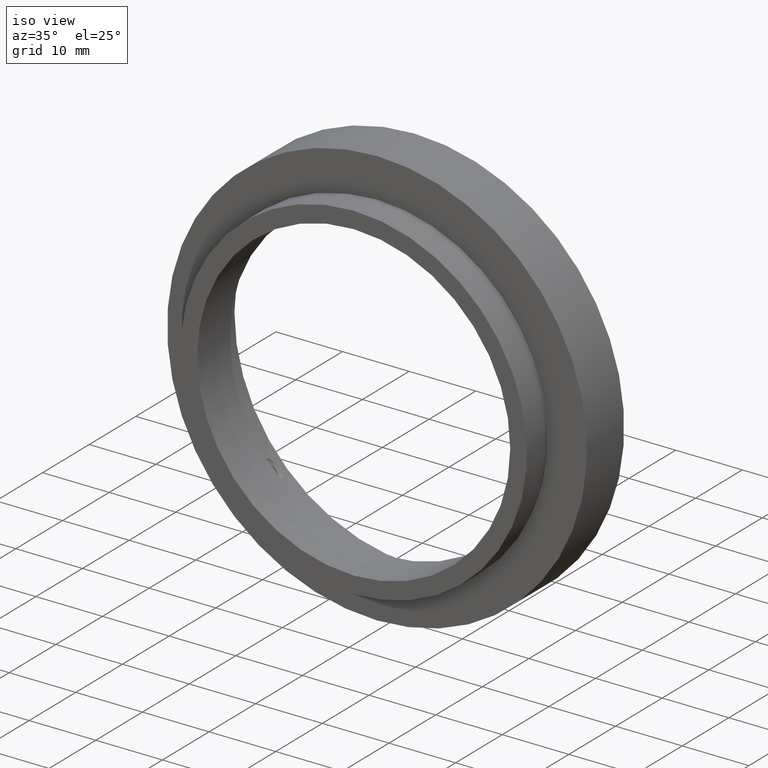
[diagram: clean part render]
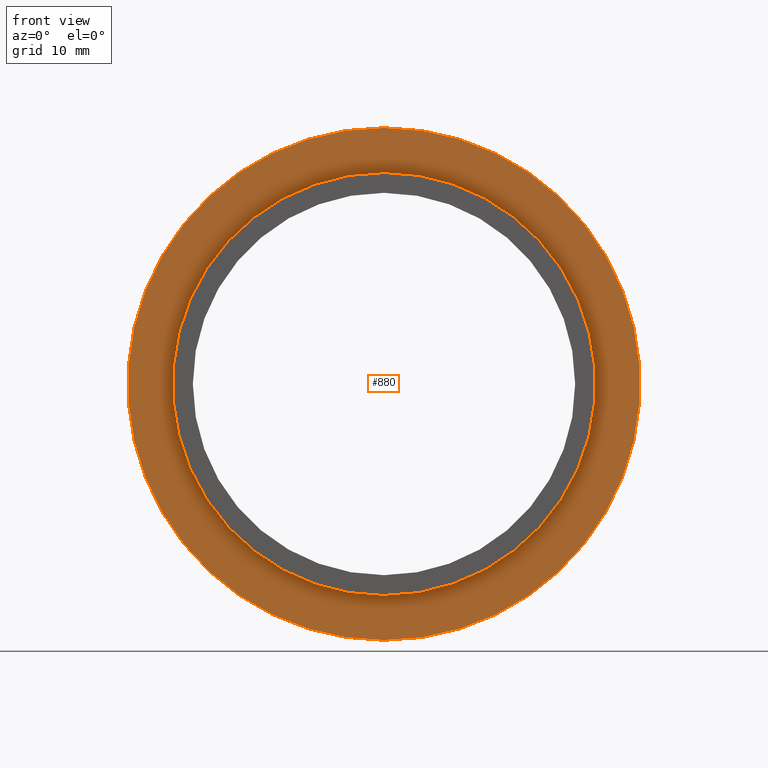
[diagram: tour spotlight — one face highlighted and labeled with its STEP entity id]
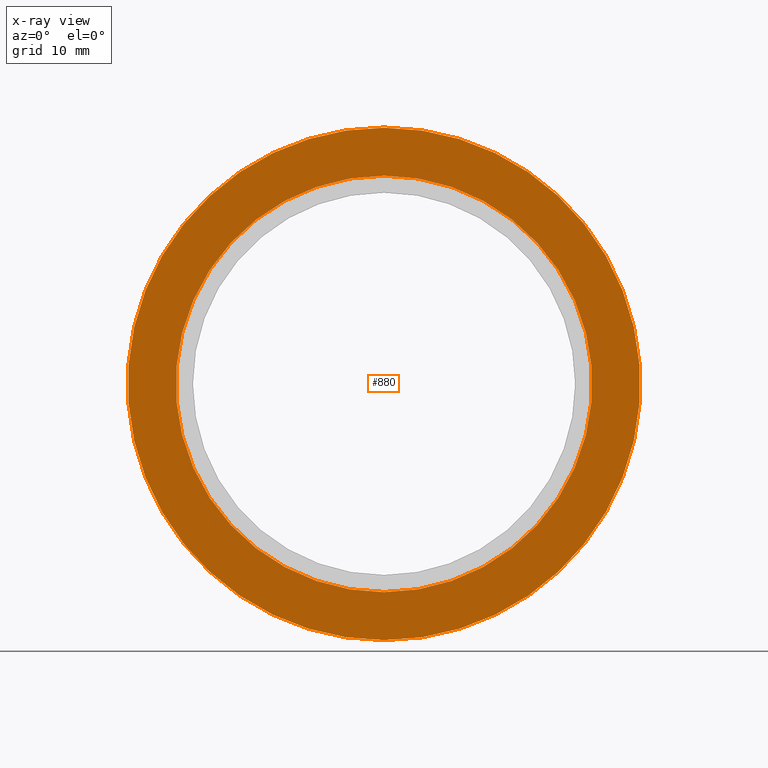
[diagram: x-ray of the same camera — body ghosted, this tour face saturated]
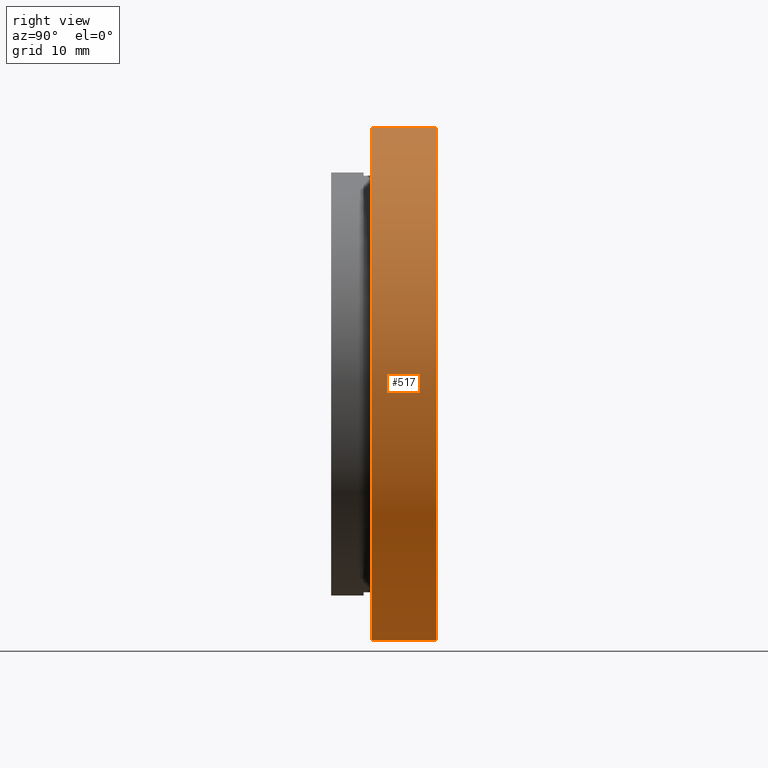
[diagram: tour spotlight — one face highlighted and labeled with its STEP entity id]
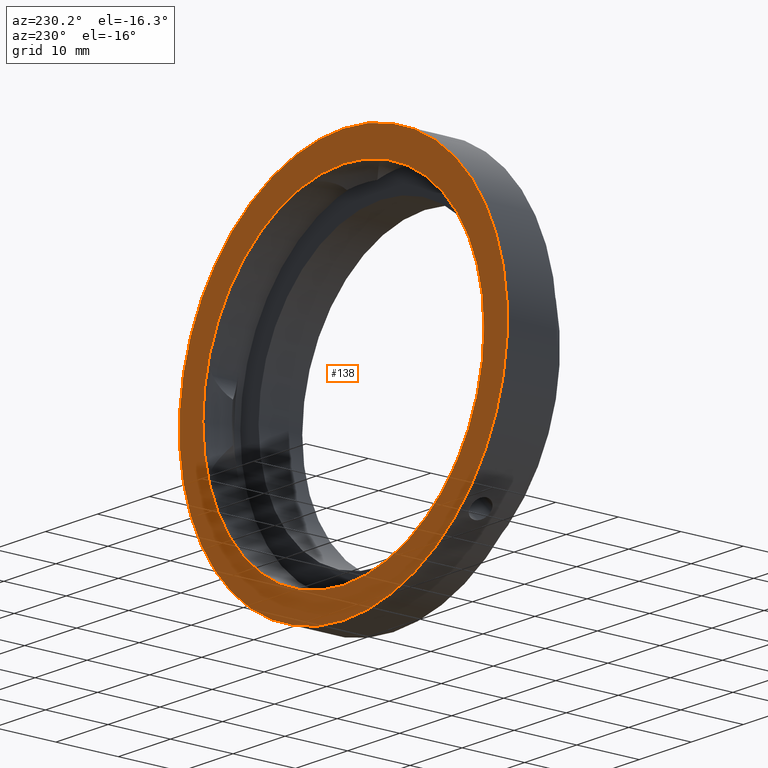
[diagram: tour spotlight — one face highlighted and labeled with its STEP entity id]
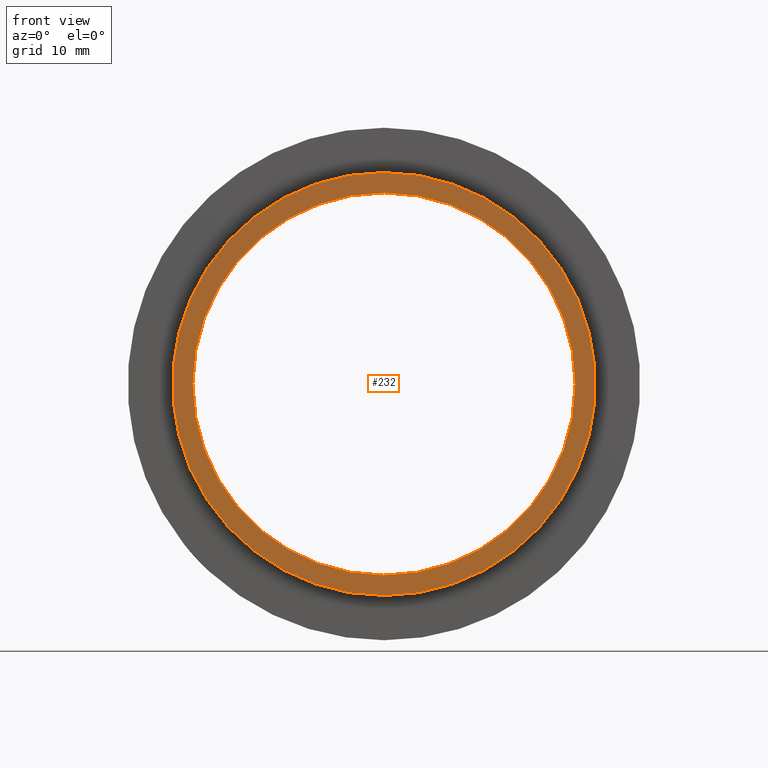
[diagram: tour spotlight — one face highlighted and labeled with its STEP entity id]
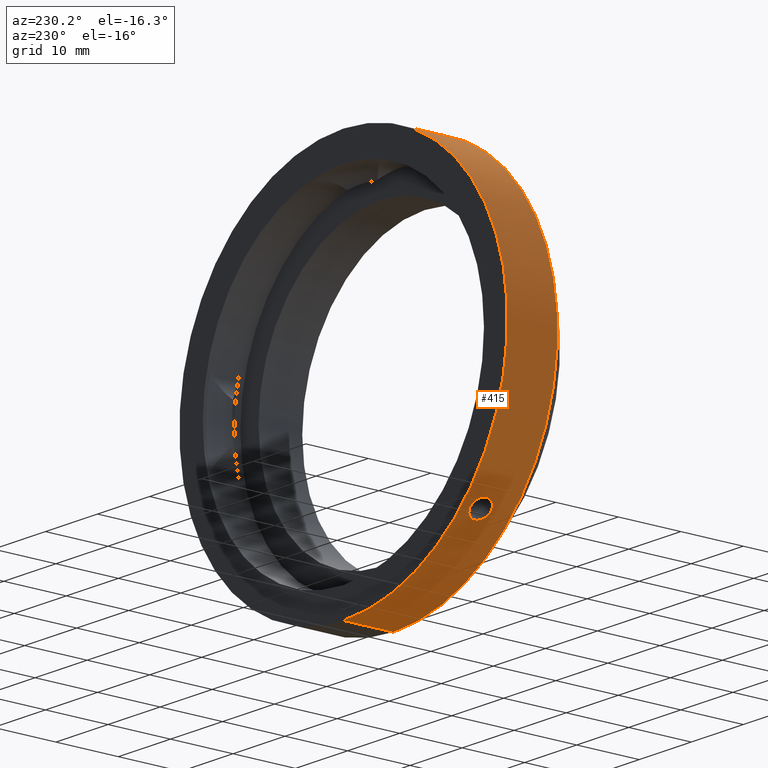
[diagram: tour spotlight — one face highlighted and labeled with its STEP entity id]
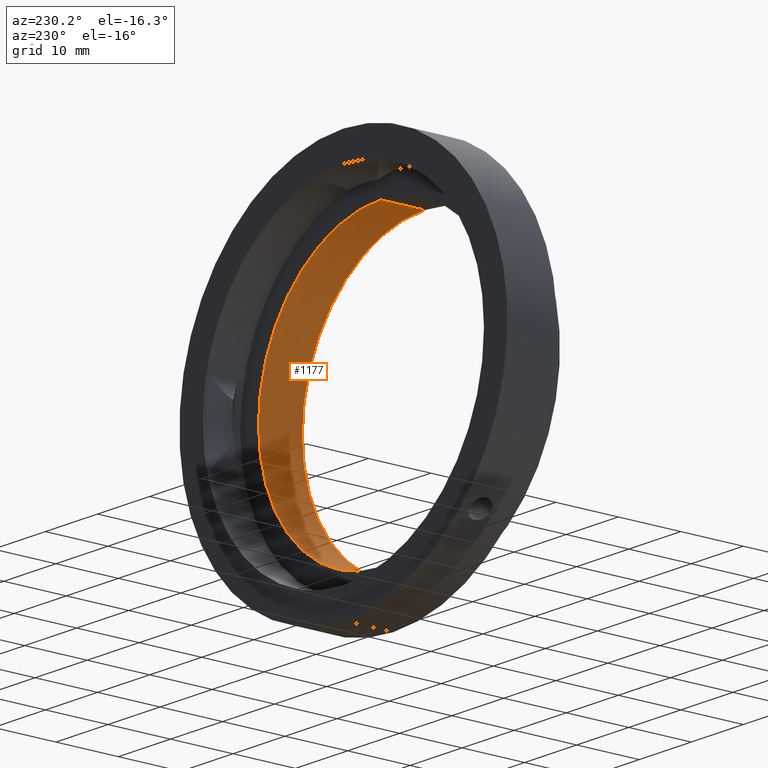
[diagram: tour spotlight — one face highlighted and labeled with its STEP entity id]
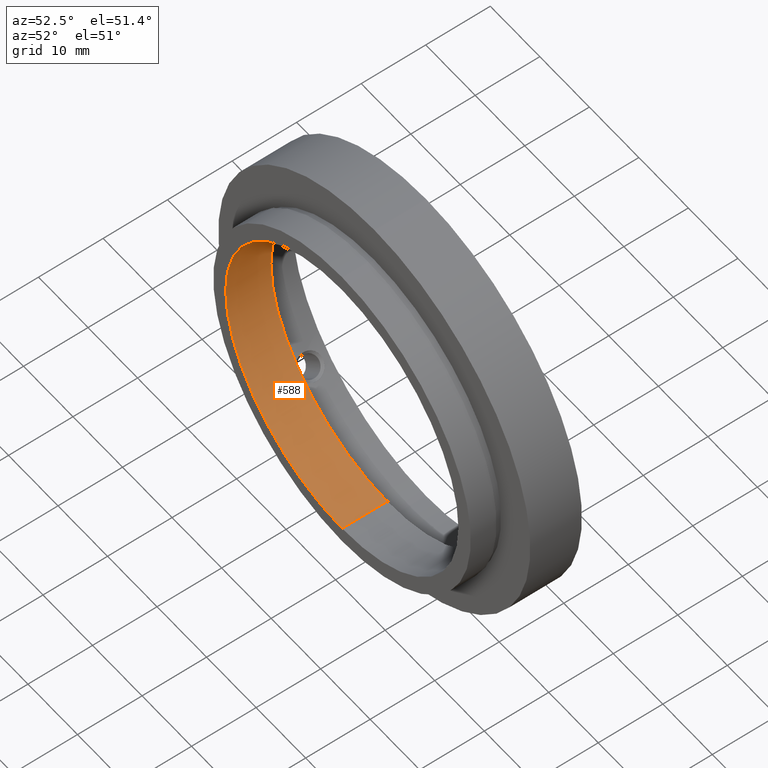
[diagram: tour spotlight — one face highlighted and labeled with its STEP entity id]
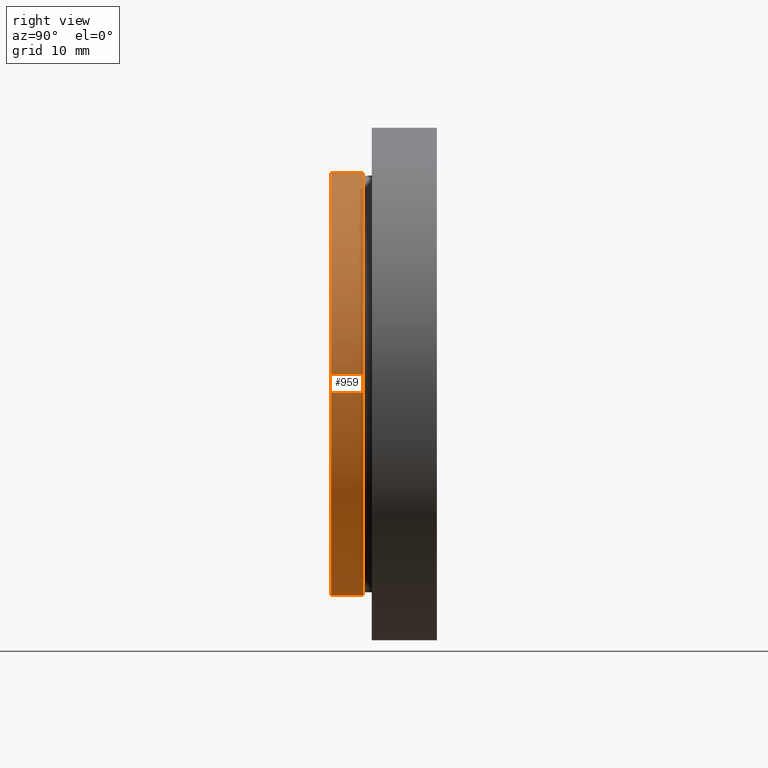
[diagram: tour spotlight — one face highlighted and labeled with its STEP entity id]
A machine part: a face-by-face anatomy tour. The part has 30 B-rep faces; the first image is the clean iso view, then the 8 largest visible faces are spotlighted one at a time (largest first), each with its STEP entity span.

Face 1 — front view, entity #880. An x-ray twin of the same camera follows (body ghosted, this face saturated) — the face is partly hidden behind the body. In plain terms, the highlighted planar face has unit normal (0, 1, 0).
Definition (entity closure, byte-faithful):
#23 = CARTESIAN_POINT ( 'NONE',  ( 3.135095805817224400E-015, -4.003278688524598100, 25.60000000000000100 ) ) ;
#48 = AXIS2_PLACEMENT_3D ( 'NONE', #117, #306, #403 ) ;
#62 = CARTESIAN_POINT ( 'NONE',  ( 0.0000000000000000000, -4.003278688524598100, -25.60000000000000100 ) ) ;
#95 = AXIS2_PLACEMENT_3D ( 'NONE', #809, #1090, #153 ) ;
#117 = CARTESIAN_POINT ( 'NONE',  ( 0.0000000000000000000, -4.003278688524598100, 0.0000000000000000000 ) ) ;
#153 = DIRECTION ( 'NONE',  ( 0.0000000000000000000, 0.0000000000000000000, -1.000000000000000000 ) ) ;
#210 = EDGE_LOOP ( 'NONE', ( #840, #387 ) ) ;
#216 = AXIS2_PLACEMENT_3D ( 'NONE', #655, #544, #1011 ) ;
#295 = EDGE_CURVE ( 'NONE', #913, #524, #1015, .T. ) ;
#306 = DIRECTION ( 'NONE',  ( -0.0000000000000000000, -1.000000000000000000, -0.0000000000000000000 ) ) ;
#312 = EDGE_LOOP ( 'NONE', ( #826, #496 ) ) ;
#352 = FACE_OUTER_BOUND ( 'NONE', #210, .T. ) ;
#387 = ORIENTED_EDGE ( 'NONE', *, *, #858, .T. ) ;
#398 = DIRECTION ( 'NONE',  ( -0.0000000000000000000, -1.000000000000000000, -0.0000000000000000000 ) ) ;
#403 = DIRECTION ( 'NONE',  ( 0.0000000000000000000, 0.0000000000000000000, -1.000000000000000000 ) ) ;
#407 = DIRECTION ( 'NONE',  ( 0.0000000000000000000, 0.0000000000000000000, -1.000000000000000000 ) ) ;
#483 = AXIS2_PLACEMENT_3D ( 'NONE', #869, #398, #407 ) ;
#496 = ORIENTED_EDGE ( 'NONE', *, *, #712, .F. ) ;
#524 = VERTEX_POINT ( 'NONE', #1127 ) ;
#544 = DIRECTION ( 'NONE',  ( 0.0000000000000000000, 1.000000000000000000, 0.0000000000000000000 ) ) ;
#570 = PLANE ( 'NONE',  #216 ) ;
#604 = FACE_BOUND ( 'NONE', #312, .T. ) ;
#655 = CARTESIAN_POINT ( 'NONE',  ( -31.50000000000000000, -4.003278688524598100, 0.0000000000000000000 ) ) ;
#712 = EDGE_CURVE ( 'NONE', #1053, #870, #801, .T. ) ;
#801 = CIRCLE ( 'NONE', #483, 25.60000000000000100 ) ;
#809 = CARTESIAN_POINT ( 'NONE',  ( 0.0000000000000000000, -4.003278688524598100, 0.0000000000000000000 ) ) ;
#823 = EDGE_CURVE ( 'NONE', #870, #1053, #996, .T. ) ;
#826 = ORIENTED_EDGE ( 'NONE', *, *, #823, .F. ) ;
#840 = ORIENTED_EDGE ( 'NONE', *, *, #295, .T. ) ;
#858 = EDGE_CURVE ( 'NONE', #524, #913, #1144, .T. ) ;
#869 = CARTESIAN_POINT ( 'NONE',  ( 0.0000000000000000000, -4.003278688524598100, 0.0000000000000000000 ) ) ;
#870 = VERTEX_POINT ( 'NONE', #62 ) ;
#880 = ADVANCED_FACE ( 'NONE', ( #604, #352 ), #570, .F. ) ;
#913 = VERTEX_POINT ( 'NONE', #930 ) ;
#930 = CARTESIAN_POINT ( 'NONE',  ( 0.0000000000000000000, -4.003278688524598100, -31.50000000000000000 ) ) ;
#973 = DIRECTION ( 'NONE',  ( -0.0000000000000000000, -1.000000000000000000, -0.0000000000000000000 ) ) ;
#979 = DIRECTION ( 'NONE',  ( 0.0000000000000000000, 0.0000000000000000000, -1.000000000000000000 ) ) ;
#996 = CIRCLE ( 'NONE', #95, 25.60000000000000100 ) ;
#1011 = DIRECTION ( 'NONE',  ( 0.0000000000000000000, -0.0000000000000000000, 1.000000000000000000 ) ) ;
#1015 = CIRCLE ( 'NONE', #48, 31.50000000000000000 ) ;
#1053 = VERTEX_POINT ( 'NONE', #23 ) ;
#1090 = DIRECTION ( 'NONE',  ( -0.0000000000000000000, -1.000000000000000000, -0.0000000000000000000 ) ) ;
#1105 = AXIS2_PLACEMENT_3D ( 'NONE', #1179, #973, #979 ) ;
#1127 = CARTESIAN_POINT ( 'NONE',  ( 3.857637417314162700E-015, -4.003278688524598100, 31.50000000000000000 ) ) ;
#1144 = CIRCLE ( 'NONE', #1105, 31.50000000000000000 ) ;
#1179 = CARTESIAN_POINT ( 'NONE',  ( 0.0000000000000000000, -4.003278688524598100, 0.0000000000000000000 ) ) ;

Face 2 — right view, entity #517. In plain terms, the highlighted cylindrical surface (partial cylindrical patch) has radius 31.5 mm, axis along (-0, -1, -0).
Definition (entity closure, byte-faithful):
#8 = CARTESIAN_POINT ( 'NONE',  ( 0.0000000000000000000, 0.0000000000000000000, 0.0000000000000000000 ) ) ;
#48 = AXIS2_PLACEMENT_3D ( 'NONE', #117, #306, #403 ) ;
#110 = CYLINDRICAL_SURFACE ( 'NONE', #1119, 31.50000000000000000 ) ;
#117 = CARTESIAN_POINT ( 'NONE',  ( 0.0000000000000000000, -4.003278688524598100, 0.0000000000000000000 ) ) ;
#139 = DIRECTION ( 'NONE',  ( -0.0000000000000000000, -1.000000000000000000, -0.0000000000000000000 ) ) ;
#269 = DIRECTION ( 'NONE',  ( 0.0000000000000000000, 0.0000000000000000000, -1.000000000000000000 ) ) ;
#272 = ORIENTED_EDGE ( 'NONE', *, *, #661, .T. ) ;
#295 = EDGE_CURVE ( 'NONE', #913, #524, #1015, .T. ) ;
#306 = DIRECTION ( 'NONE',  ( -0.0000000000000000000, -1.000000000000000000, -0.0000000000000000000 ) ) ;
#335 = EDGE_CURVE ( 'NONE', #529, #644, #907, .T. ) ;
#365 = DIRECTION ( 'NONE',  ( -0.0000000000000000000, -1.000000000000000000, -0.0000000000000000000 ) ) ;
#403 = DIRECTION ( 'NONE',  ( 0.0000000000000000000, 0.0000000000000000000, -1.000000000000000000 ) ) ;
#517 = ADVANCED_FACE ( 'NONE', ( #552 ), #110, .T. ) ;
#524 = VERTEX_POINT ( 'NONE', #1127 ) ;
#526 = ORIENTED_EDGE ( 'NONE', *, *, #864, .F. ) ;
#529 = VERTEX_POINT ( 'NONE', #656 ) ;
#552 = FACE_OUTER_BOUND ( 'NONE', #560, .T. ) ;
#560 = EDGE_LOOP ( 'NONE', ( #684, #272, #1137, #526 ) ) ;
#575 = DIRECTION ( 'NONE',  ( -0.0000000000000000000, -1.000000000000000000, -0.0000000000000000000 ) ) ;
#621 = DIRECTION ( 'NONE',  ( 0.0000000000000000000, 0.0000000000000000000, -1.000000000000000000 ) ) ;
#626 = CARTESIAN_POINT ( 'NONE',  ( 0.0000000000000000000, 0.0000000000000000000, -31.50000000000000000 ) ) ;
#644 = VERTEX_POINT ( 'NONE', #679 ) ;
#656 = CARTESIAN_POINT ( 'NONE',  ( 0.0000000000000000000, 3.996721311475401000, -31.50000000000000000 ) ) ;
#661 = EDGE_CURVE ( 'NONE', #644, #524, #1088, .T. ) ;
#679 = CARTESIAN_POINT ( 'NONE',  ( 3.857637417314162700E-015, 3.996721311475401000, 31.50000000000000000 ) ) ;
#684 = ORIENTED_EDGE ( 'NONE', *, *, #335, .T. ) ;
#846 = VECTOR ( 'NONE', #1079, 1000.000000000000000 ) ;
#864 = EDGE_CURVE ( 'NONE', #529, #913, #1103, .T. ) ;
#907 = CIRCLE ( 'NONE', #1004, 31.50000000000000000 ) ;
#913 = VERTEX_POINT ( 'NONE', #930 ) ;
#930 = CARTESIAN_POINT ( 'NONE',  ( 0.0000000000000000000, -4.003278688524598100, -31.50000000000000000 ) ) ;
#984 = CARTESIAN_POINT ( 'NONE',  ( 0.0000000000000000000, 3.996721311475401000, 0.0000000000000000000 ) ) ;
#1004 = AXIS2_PLACEMENT_3D ( 'NONE', #984, #139, #621 ) ;
#1015 = CIRCLE ( 'NONE', #48, 31.50000000000000000 ) ;
#1042 = CARTESIAN_POINT ( 'NONE',  ( 3.857637417314162700E-015, 0.0000000000000000000, 31.50000000000000000 ) ) ;
#1072 = VECTOR ( 'NONE', #575, 1000.000000000000000 ) ;
#1079 = DIRECTION ( 'NONE',  ( -0.0000000000000000000, -1.000000000000000000, -0.0000000000000000000 ) ) ;
#1088 = LINE ( 'NONE', #1042, #1072 ) ;
#1103 = LINE ( 'NONE', #626, #846 ) ;
#1119 = AXIS2_PLACEMENT_3D ( 'NONE', #8, #365, #269 ) ;
#1127 = CARTESIAN_POINT ( 'NONE',  ( 3.857637417314162700E-015, -4.003278688524598100, 31.50000000000000000 ) ) ;
#1137 = ORIENTED_EDGE ( 'NONE', *, *, #295, .F. ) ;

Face 3 — auxiliary view, entity #138. In plain terms, the highlighted planar face has unit normal (0, -1, -0).
Definition (entity closure, byte-faithful):
#87 = FACE_BOUND ( 'NONE', #558, .T. ) ;
#127 = AXIS2_PLACEMENT_3D ( 'NONE', #741, #646, #567 ) ;
#134 = CIRCLE ( 'NONE', #127, 31.50000000000000000 ) ;
#138 = ADVANCED_FACE ( 'NONE', ( #217, #87 ), #220, .F. ) ;
#139 = DIRECTION ( 'NONE',  ( -0.0000000000000000000, -1.000000000000000000, -0.0000000000000000000 ) ) ;
#172 = EDGE_CURVE ( 'NONE', #601, #460, #820, .T. ) ;
#217 = FACE_OUTER_BOUND ( 'NONE', #421, .T. ) ;
#220 = PLANE ( 'NONE',  #654 ) ;
#241 = DIRECTION ( 'NONE',  ( 0.0000000000000000000, 0.0000000000000000000, -1.000000000000000000 ) ) ;
#276 = CIRCLE ( 'NONE', #928, 27.00000000000000000 ) ;
#313 = DIRECTION ( 'NONE',  ( 0.0000000000000000000, 0.0000000000000000000, -1.000000000000000000 ) ) ;
#335 = EDGE_CURVE ( 'NONE', #529, #644, #907, .T. ) ;
#338 = DIRECTION ( 'NONE',  ( -0.0000000000000000000, -1.000000000000000000, -0.0000000000000000000 ) ) ;
#377 = ORIENTED_EDGE ( 'NONE', *, *, #1161, .T. ) ;
#414 = DIRECTION ( 'NONE',  ( 0.0000000000000000000, -1.000000000000000000, -0.0000000000000000000 ) ) ;
#421 = EDGE_LOOP ( 'NONE', ( #939, #814 ) ) ;
#460 = VERTEX_POINT ( 'NONE', #1205 ) ;
#529 = VERTEX_POINT ( 'NONE', #656 ) ;
#556 = EDGE_CURVE ( 'NONE', #644, #529, #134, .T. ) ;
#558 = EDGE_LOOP ( 'NONE', ( #615, #377 ) ) ;
#567 = DIRECTION ( 'NONE',  ( 0.0000000000000000000, 0.0000000000000000000, -1.000000000000000000 ) ) ;
#600 = CARTESIAN_POINT ( 'NONE',  ( -27.00000000000000000, 3.996721311475401000, 0.0000000000000000000 ) ) ;
#601 = VERTEX_POINT ( 'NONE', #768 ) ;
#615 = ORIENTED_EDGE ( 'NONE', *, *, #172, .T. ) ;
#621 = DIRECTION ( 'NONE',  ( 0.0000000000000000000, 0.0000000000000000000, -1.000000000000000000 ) ) ;
#644 = VERTEX_POINT ( 'NONE', #679 ) ;
#646 = DIRECTION ( 'NONE',  ( -0.0000000000000000000, -1.000000000000000000, -0.0000000000000000000 ) ) ;
#654 = AXIS2_PLACEMENT_3D ( 'NONE', #600, #414, #876 ) ;
#656 = CARTESIAN_POINT ( 'NONE',  ( 0.0000000000000000000, 3.996721311475401000, -31.50000000000000000 ) ) ;
#679 = CARTESIAN_POINT ( 'NONE',  ( 3.857637417314162700E-015, 3.996721311475401000, 31.50000000000000000 ) ) ;
#741 = CARTESIAN_POINT ( 'NONE',  ( 0.0000000000000000000, 3.996721311475401000, 0.0000000000000000000 ) ) ;
#765 = DIRECTION ( 'NONE',  ( -0.0000000000000000000, -1.000000000000000000, -0.0000000000000000000 ) ) ;
#768 = CARTESIAN_POINT ( 'NONE',  ( 0.0000000000000000000, 3.996721311475401000, -27.00000000000000000 ) ) ;
#770 = CARTESIAN_POINT ( 'NONE',  ( 0.0000000000000000000, 3.996721311475401000, 0.0000000000000000000 ) ) ;
#814 = ORIENTED_EDGE ( 'NONE', *, *, #556, .F. ) ;
#820 = CIRCLE ( 'NONE', #1131, 27.00000000000000000 ) ;
#876 = DIRECTION ( 'NONE',  ( 0.0000000000000000000, 0.0000000000000000000, -1.000000000000000000 ) ) ;
#907 = CIRCLE ( 'NONE', #1004, 31.50000000000000000 ) ;
#911 = CARTESIAN_POINT ( 'NONE',  ( 0.0000000000000000000, 3.996721311475401000, 0.0000000000000000000 ) ) ;
#928 = AXIS2_PLACEMENT_3D ( 'NONE', #911, #338, #241 ) ;
#939 = ORIENTED_EDGE ( 'NONE', *, *, #335, .F. ) ;
#984 = CARTESIAN_POINT ( 'NONE',  ( 0.0000000000000000000, 3.996721311475401000, 0.0000000000000000000 ) ) ;
#1004 = AXIS2_PLACEMENT_3D ( 'NONE', #984, #139, #621 ) ;
#1131 = AXIS2_PLACEMENT_3D ( 'NONE', #770, #765, #313 ) ;
#1161 = EDGE_CURVE ( 'NONE', #460, #601, #276, .T. ) ;
#1205 = CARTESIAN_POINT ( 'NONE',  ( 3.306546357697853700E-015, 3.996721311475401000, 27.00000000000000000 ) ) ;

Face 4 — front view, entity #232. In plain terms, the highlighted planar face has unit normal (0, 1, 0).
Definition (entity closure, byte-faithful):
#18 = ORIENTED_EDGE ( 'NONE', *, *, #453, .T. ) ;
#65 = CARTESIAN_POINT ( 'NONE',  ( 0.0000000000000000000, -9.003278688524599000, 0.0000000000000000000 ) ) ;
#164 = FACE_BOUND ( 'NONE', #1039, .T. ) ;
#227 = DIRECTION ( 'NONE',  ( -0.0000000000000000000, -1.000000000000000000, -0.0000000000000000000 ) ) ;
#232 = ADVANCED_FACE ( 'NONE', ( #164, #1106 ), #592, .F. ) ;
#247 = DIRECTION ( 'NONE',  ( 0.0000000000000000000, 0.0000000000000000000, -1.000000000000000000 ) ) ;
#264 = CIRCLE ( 'NONE', #1154, 26.00000000000000000 ) ;
#358 = CARTESIAN_POINT ( 'NONE',  ( 0.0000000000000000000, -9.003278688524595500, 0.0000000000000000000 ) ) ;
#375 = EDGE_CURVE ( 'NONE', #767, #509, #760, .T. ) ;
#399 = EDGE_CURVE ( 'NONE', #1124, #582, #264, .T. ) ;
#438 = DIRECTION ( 'NONE',  ( 0.0000000000000000000, 0.0000000000000000000, -1.000000000000000000 ) ) ;
#453 = EDGE_CURVE ( 'NONE', #582, #1124, #1159, .T. ) ;
#509 = VERTEX_POINT ( 'NONE', #716 ) ;
#515 = DIRECTION ( 'NONE',  ( -0.0000000000000000000, -1.000000000000000000, -0.0000000000000000000 ) ) ;
#522 = CARTESIAN_POINT ( 'NONE',  ( 0.0000000000000000000, -9.003278688524595500, 0.0000000000000000000 ) ) ;
#581 = DIRECTION ( 'NONE',  ( 0.0000000000000000000, 1.000000000000000000, 0.0000000000000000000 ) ) ;
#582 = VERTEX_POINT ( 'NONE', #836 ) ;
#592 = PLANE ( 'NONE',  #956 ) ;
#700 = DIRECTION ( 'NONE',  ( -0.0000000000000000000, -1.000000000000000000, -0.0000000000000000000 ) ) ;
#703 = DIRECTION ( 'NONE',  ( 0.0000000000000000000, 0.0000000000000000000, -1.000000000000000000 ) ) ;
#705 = CARTESIAN_POINT ( 'NONE',  ( 0.0000000000000000000, -9.003278688524599000, 0.0000000000000000000 ) ) ;
#716 = CARTESIAN_POINT ( 'NONE',  ( 0.0000000000000000000, -9.003278688524599000, -23.49999999999999600 ) ) ;
#760 = CIRCLE ( 'NONE', #1198, 23.49999999999999600 ) ;
#762 = CARTESIAN_POINT ( 'NONE',  ( 0.0000000000000000000, -9.003278688524595500, -26.00000000000000000 ) ) ;
#767 = VERTEX_POINT ( 'NONE', #964 ) ;
#793 = EDGE_CURVE ( 'NONE', #509, #767, #945, .T. ) ;
#812 = AXIS2_PLACEMENT_3D ( 'NONE', #358, #899, #247 ) ;
#836 = CARTESIAN_POINT ( 'NONE',  ( 3.184081677783118200E-015, -9.003278688524595500, 26.00000000000000000 ) ) ;
#899 = DIRECTION ( 'NONE',  ( -0.0000000000000000000, -1.000000000000000000, -0.0000000000000000000 ) ) ;
#945 = CIRCLE ( 'NONE', #1171, 23.49999999999999600 ) ;
#956 = AXIS2_PLACEMENT_3D ( 'NONE', #1060, #581, #1150 ) ;
#964 = CARTESIAN_POINT ( 'NONE',  ( 2.877919977996279500E-015, -9.003278688524599000, 23.49999999999999600 ) ) ;
#970 = DIRECTION ( 'NONE',  ( 0.0000000000000000000, 0.0000000000000000000, -1.000000000000000000 ) ) ;
#1008 = ORIENTED_EDGE ( 'NONE', *, *, #399, .T. ) ;
#1021 = ORIENTED_EDGE ( 'NONE', *, *, #793, .F. ) ;
#1039 = EDGE_LOOP ( 'NONE', ( #1021, #1186 ) ) ;
#1060 = CARTESIAN_POINT ( 'NONE',  ( -26.00000000000000000, -9.003278688524597200, 0.0000000000000000000 ) ) ;
#1106 = FACE_OUTER_BOUND ( 'NONE', #1168, .T. ) ;
#1124 = VERTEX_POINT ( 'NONE', #762 ) ;
#1150 = DIRECTION ( 'NONE',  ( 0.0000000000000000000, -0.0000000000000000000, 1.000000000000000000 ) ) ;
#1154 = AXIS2_PLACEMENT_3D ( 'NONE', #522, #227, #703 ) ;
#1159 = CIRCLE ( 'NONE', #812, 26.00000000000000000 ) ;
#1168 = EDGE_LOOP ( 'NONE', ( #1008, #18 ) ) ;
#1171 = AXIS2_PLACEMENT_3D ( 'NONE', #705, #700, #438 ) ;
#1186 = ORIENTED_EDGE ( 'NONE', *, *, #375, .F. ) ;
#1198 = AXIS2_PLACEMENT_3D ( 'NONE', #65, #515, #970 ) ;

Face 5 — auxiliary view, entity #415. In plain terms, the highlighted cylindrical surface (partial cylindrical patch) has radius 31.5 mm, axis along (-0, -1, -0).
Definition (entity closure, byte-faithful):
#40 = FACE_OUTER_BOUND ( 'NONE', #223, .T. ) ;
#70 = CARTESIAN_POINT ( 'NONE',  ( -23.46020590372201300, -0.3149907501200605600, -21.02086558098303100 ) ) ;
#74 = CARTESIAN_POINT ( 'NONE',  ( -23.77550605843673600, 1.728083911235984500, -20.66342252342952800 ) ) ;
#76 = CARTESIAN_POINT ( 'NONE',  ( -21.75691578411938200, 0.1651842832820210300, -22.77923243659460400 ) ) ;
#78 = CARTESIAN_POINT ( 'NONE',  ( -21.76351426358370800, 1.823304763447246100, -22.77285751721110800 ) ) ;
#88 = CARTESIAN_POINT ( 'NONE',  ( -22.62717446904842300, 2.646644425745801100, -21.91591477700608300 ) ) ;
#103 = CARTESIAN_POINT ( 'NONE',  ( -21.60522735244103000, 0.9967213114754008800, -22.92300484337369700 ) ) ;
#116 = ORIENTED_EDGE ( 'NONE', *, *, #556, .T. ) ;
#127 = AXIS2_PLACEMENT_3D ( 'NONE', #741, #646, #567 ) ;
#134 = CIRCLE ( 'NONE', #127, 31.50000000000000000 ) ;
#149 = CARTESIAN_POINT ( 'NONE',  ( -23.14142829165112000, -0.5685077172544312800, -21.37134187885088800 ) ) ;
#159 = CARTESIAN_POINT ( 'NONE',  ( -23.34002152385437200, 2.428374851634509400, -21.15422874352426400 ) ) ;
#180 = CARTESIAN_POINT ( 'NONE',  ( -21.63722271029589500, 0.5620953827227164200, -22.89295542787611400 ) ) ;
#185 = AXIS2_PLACEMENT_3D ( 'NONE', #810, #1003, #821 ) ;
#223 = EDGE_LOOP ( 'NONE', ( #583, #116, #673, #571 ) ) ;
#235 = CARTESIAN_POINT ( 'NONE',  ( -23.88482892552873700, 0.9967213114754011100, -20.53691669161234800 ) ) ;
#240 = ORIENTED_EDGE ( 'NONE', *, *, #879, .T. ) ;
#251 = CARTESIAN_POINT ( 'NONE',  ( -23.66279821606099200, 2.003230850192477200, -20.79243990306020600 ) ) ;
#254 = CARTESIAN_POINT ( 'NONE',  ( -22.92536190013123600, 2.636026237330753000, -21.60298546842877300 ) ) ;
#265 = CARTESIAN_POINT ( 'NONE',  ( -23.51530437804490600, 2.240709153625879400, -20.95916036140708300 ) ) ;
#328 = CARTESIAN_POINT ( 'NONE',  ( -23.34007217087408000, -0.4349170511237368000, -21.15417410056892000 ) ) ;
#347 = CARTESIAN_POINT ( 'NONE',  ( -23.88482892552873300, 1.104418319846310200, -20.53691669161234400 ) ) ;
#357 = CARTESIAN_POINT ( 'NONE',  ( -21.60522735244103000, 0.7786922303288742500, -22.92300484337370000 ) ) ;
#360 = CARTESIAN_POINT ( 'NONE',  ( -21.61303009206918400, 1.212974077049962400, -22.91565776818825700 ) ) ;
#376 = EDGE_LOOP ( 'NONE', ( #898, #240 ) ) ;
#415 = ADVANCED_FACE ( 'NONE', ( #40, #605 ), #933, .T. ) ;
#420 = CARTESIAN_POINT ( 'NONE',  ( -23.88482892552874400, 0.7813764284198828600, -20.53691669161234800 ) ) ;
#431 = CARTESIAN_POINT ( 'NONE',  ( -23.27636205189914500, -0.4856344308044109900, -21.22430038209190800 ) ) ;
#434 = CARTESIAN_POINT ( 'NONE',  ( -22.62686429390143100, -0.6534572607649544700, -21.91625881211116000 ) ) ;
#441 = CARTESIAN_POINT ( 'NONE',  ( -21.90023671032698300, 2.087567809283316300, -22.64145388984293900 ) ) ;
#448 = CARTESIAN_POINT ( 'NONE',  ( -23.88482892552873700, 0.9967213114754011100, -20.53691669161234800 ) ) ;
#451 = CARTESIAN_POINT ( 'NONE',  ( -21.60522735244103000, 0.9967213114754008800, -22.92300484337369700 ) ) ;
#457 = CARTESIAN_POINT ( 'NONE',  ( -22.47544993886716800, 2.603322021969421300, -22.07132970426515000 ) ) ;
#478 = EDGE_CURVE ( 'NONE', #1155, #924, #926, .T. ) ;
#519 = CARTESIAN_POINT ( 'NONE',  ( -23.07013226876501500, -0.6003652745184882000, -21.44831272250181100 ) ) ;
#520 = CARTESIAN_POINT ( 'NONE',  ( -23.74888185930085200, 0.1671783989665586700, -20.69413878594482300 ) ) ;
#524 = VERTEX_POINT ( 'NONE', #1127 ) ;
#529 = VERTEX_POINT ( 'NONE', #656 ) ;
#533 = CARTESIAN_POINT ( 'NONE',  ( -23.87778676482407600, 1.213797993746963200, -20.54511487670324100 ) ) ;
#537 = CARTESIAN_POINT ( 'NONE',  ( -22.85241868864300200, -0.6531885644572609200, -21.68014776477499300 ) ) ;
#556 = EDGE_CURVE ( 'NONE', #644, #529, #134, .T. ) ;
#567 = DIRECTION ( 'NONE',  ( 0.0000000000000000000, 0.0000000000000000000, -1.000000000000000000 ) ) ;
#571 = ORIENTED_EDGE ( 'NONE', *, *, #858, .F. ) ;
#575 = DIRECTION ( 'NONE',  ( -0.0000000000000000000, -1.000000000000000000, -0.0000000000000000000 ) ) ;
#583 = ORIENTED_EDGE ( 'NONE', *, *, #661, .F. ) ;
#605 = FACE_BOUND ( 'NONE', #376, .T. ) ;
#609 = CARTESIAN_POINT ( 'NONE',  ( -22.07074055005366700, -0.3165246267945751000, -22.47532991219607000 ) ) ;
#626 = CARTESIAN_POINT ( 'NONE',  ( 0.0000000000000000000, 0.0000000000000000000, -31.50000000000000000 ) ) ;
#628 = CARTESIAN_POINT ( 'NONE',  ( -23.45976557416106400, 2.308908179544219700, -21.02135575248991000 ) ) ;
#639 = CARTESIAN_POINT ( 'NONE',  ( -22.00996699186486100, -0.2469073343106738000, -22.53479898551093900 ) ) ;
#644 = VERTEX_POINT ( 'NONE', #679 ) ;
#646 = DIRECTION ( 'NONE',  ( -0.0000000000000000000, -1.000000000000000000, -0.0000000000000000000 ) ) ;
#656 = CARTESIAN_POINT ( 'NONE',  ( 0.0000000000000000000, 3.996721311475401000, -31.50000000000000000 ) ) ;
#661 = EDGE_CURVE ( 'NONE', #644, #524, #1088, .T. ) ;
#673 = ORIENTED_EDGE ( 'NONE', *, *, #864, .T. ) ;
#679 = CARTESIAN_POINT ( 'NONE',  ( 3.857637417314162700E-015, 3.996721311475401000, 31.50000000000000000 ) ) ;
#693 = CARTESIAN_POINT ( 'NONE',  ( -21.60522735244103000, 0.9967213114754008800, -22.92300484337369700 ) ) ;
#708 = CARTESIAN_POINT ( 'NONE',  ( -23.51670801140778600, -0.2452955460657123800, -20.95758165009438700 ) ) ;
#713 = CARTESIAN_POINT ( 'NONE',  ( -22.19836019732786500, -0.4360204841378813600, -22.34929188228407800 ) ) ;
#725 = CARTESIAN_POINT ( 'NONE',  ( -23.74157809124659800, 1.824525617688590700, -20.70244058737108600 ) ) ;
#727 = CARTESIAN_POINT ( 'NONE',  ( -21.66664799592553000, 1.528704914792835300, -22.86499692561790200 ) ) ;
#734 = CARTESIAN_POINT ( 'NONE',  ( -22.85024697306020900, 2.646759596924608300, -21.68243066428647800 ) ) ;
#741 = CARTESIAN_POINT ( 'NONE',  ( 0.0000000000000000000, 3.996721311475401000, 0.0000000000000000000 ) ) ;
#810 = CARTESIAN_POINT ( 'NONE',  ( 0.0000000000000000000, 0.0000000000000000000, 0.0000000000000000000 ) ) ;
#819 = CARTESIAN_POINT ( 'NONE',  ( -21.84596040616662900, -0.01867136625314635300, -22.69421210647466200 ) ) ;
#821 = DIRECTION ( 'NONE',  ( 0.0000000000000000000, 0.0000000000000000000, -1.000000000000000000 ) ) ;
#846 = VECTOR ( 'NONE', #1079, 1000.000000000000000 ) ;
#858 = EDGE_CURVE ( 'NONE', #524, #913, #1144, .T. ) ;
#864 = EDGE_CURVE ( 'NONE', #529, #913, #1103, .T. ) ;
#879 = EDGE_CURVE ( 'NONE', #924, #1155, #1093, .T. ) ;
#891 = CARTESIAN_POINT ( 'NONE',  ( -23.66809796631060400, -0.01696830094984331700, -20.78687749311713200 ) ) ;
#894 = CARTESIAN_POINT ( 'NONE',  ( -22.92600329708660200, -0.6424355248566214800, -21.60230298747148900 ) ) ;
#898 = ORIENTED_EDGE ( 'NONE', *, *, #478, .T. ) ;
#903 = CARTESIAN_POINT ( 'NONE',  ( -23.88482892552873700, 0.9967213114754011100, -20.53691669161234800 ) ) ;
#905 = CARTESIAN_POINT ( 'NONE',  ( -23.82981419633109300, 1.528128525174558900, -20.60076877412278800 ) ) ;
#913 = VERTEX_POINT ( 'NONE', #930 ) ;
#918 = CARTESIAN_POINT ( 'NONE',  ( -21.85002089220547100, 2.002663578445805600, -22.68986953709948300 ) ) ;
#924 = VERTEX_POINT ( 'NONE', #235 ) ;
#926 = B_SPLINE_CURVE_WITH_KNOTS ( 'NONE', 3,
 ( #451, #1007, #360, #1193, #727, #1000, #78, #918, #441, #1096, #1200, #457, #88, #734, #254, #1107, #1110, #1185, #159, #628, #265, #1017, #251, #725, #74, #905, #1091, #533, #347, #448 ),
 .UNSPECIFIED., .F., .F.,
 ( 4, 2, 2, 2, 2, 2, 2, 2, 2, 2, 2, 2, 2, 2, 4 ),
 ( 0.0000000000000000000, 0.0003224709735818870900, 0.0006449419471637741700, 0.0009674129207456612100, 0.001289883894327549000, 0.001934825841491330200, 0.002579767788655111900, 0.002902238762237005400, 0.003224709735818899800, 0.003547180709400793800, 0.003869651682982687300, 0.004192122656564581700, 0.004514593630146475700, 0.004837064603728369700, 0.005159535577310263600 ),
 .UNSPECIFIED. ) ;
#930 = CARTESIAN_POINT ( 'NONE',  ( 0.0000000000000000000, -4.003278688524598100, -31.50000000000000000 ) ) ;
#933 = CYLINDRICAL_SURFACE ( 'NONE', #185, 31.50000000000000000 ) ;
#973 = DIRECTION ( 'NONE',  ( -0.0000000000000000000, -1.000000000000000000, -0.0000000000000000000 ) ) ;
#979 = DIRECTION ( 'NONE',  ( 0.0000000000000000000, 0.0000000000000000000, -1.000000000000000000 ) ) ;
#1000 = CARTESIAN_POINT ( 'NONE',  ( -21.72677715729067700, 1.728532595381175900, -22.80786868923293700 ) ) ;
#1003 = DIRECTION ( 'NONE',  ( -0.0000000000000000000, -1.000000000000000000, -0.0000000000000000000 ) ) ;
#1007 = CARTESIAN_POINT ( 'NONE',  ( -21.60522735244104100, 1.105760725108857900, -22.92300484337370400 ) ) ;
#1017 = CARTESIAN_POINT ( 'NONE',  ( -23.61761039637767800, 2.086700541457108000, -20.84381016542294400 ) ) ;
#1042 = CARTESIAN_POINT ( 'NONE',  ( 3.857637417314162700E-015, 0.0000000000000000000, 31.50000000000000000 ) ) ;
#1072 = VECTOR ( 'NONE', #575, 1000.000000000000000 ) ;
#1076 = CARTESIAN_POINT ( 'NONE',  ( -22.47722189049799700, -0.6107670302239118800, -22.06953876824962200 ) ) ;
#1079 = DIRECTION ( 'NONE',  ( -0.0000000000000000000, -1.000000000000000000, -0.0000000000000000000 ) ) ;
#1088 = LINE ( 'NONE', #1042, #1072 ) ;
#1091 = CARTESIAN_POINT ( 'NONE',  ( -23.85021439343185900, 1.425259031916904100, -20.57711640319596200 ) ) ;
#1093 = B_SPLINE_CURVE_WITH_KNOTS ( 'NONE', 3,
 ( #903, #420, #1095, #520, #891, #708, #70, #328, #431, #149, #519, #894, #537, #434, #1076, #1169, #713, #609, #639, #819, #76, #180, #357, #103 ),
 .UNSPECIFIED., .F., .F.,
 ( 4, 2, 2, 2, 2, 2, 2, 2, 2, 2, 2, 4 ),
 ( 0.005159535577310263600, 0.005804330406295960300, 0.006449125235281657000, 0.006771522649774503600, 0.007093920064267349300, 0.007416317478760195100, 0.007738714893253041700, 0.008383509722238748800, 0.008705907136731598800, 0.009028304551224448900, 0.009673099380210152500, 0.01031789420919585800 ),
 .UNSPECIFIED. ) ;
#1095 = CARTESIAN_POINT ( 'NONE',  ( -23.85666316757359300, 0.5643223121220348700, -20.56979319701373400 ) ) ;
#1096 = CARTESIAN_POINT ( 'NONE',  ( -22.06410402864271700, 2.315844652474295300, -22.48218232890618400 ) ) ;
#1103 = LINE ( 'NONE', #626, #846 ) ;
#1105 = AXIS2_PLACEMENT_3D ( 'NONE', #1179, #973, #979 ) ;
#1107 = CARTESIAN_POINT ( 'NONE',  ( -23.06999729350935300, 2.593886216139015500, -21.44845971809174400 ) ) ;
#1110 = CARTESIAN_POINT ( 'NONE',  ( -23.13991114275355400, 2.562715924841546800, -21.37298519076066900 ) ) ;
#1127 = CARTESIAN_POINT ( 'NONE',  ( 3.857637417314162700E-015, -4.003278688524598100, 31.50000000000000000 ) ) ;
#1144 = CIRCLE ( 'NONE', #1105, 31.50000000000000000 ) ;
#1155 = VERTEX_POINT ( 'NONE', #693 ) ;
#1169 = CARTESIAN_POINT ( 'NONE',  ( -22.26556450463088400, -0.4866471373115450200, -22.28238426716518500 ) ) ;
#1179 = CARTESIAN_POINT ( 'NONE',  ( 0.0000000000000000000, -4.003278688524598100, 0.0000000000000000000 ) ) ;
#1185 = CARTESIAN_POINT ( 'NONE',  ( -23.27503470549953900, 2.480055030649932000, -21.22575659704023800 ) ) ;
#1193 = CARTESIAN_POINT ( 'NONE',  ( -21.64355502185723500, 1.423899155066854900, -22.88682954725825500 ) ) ;
#1200 = CARTESIAN_POINT ( 'NONE',  ( -22.19535492233682900, 2.438765284288311600, -22.35297887844927400 ) ) ;

Face 6 — auxiliary view, entity #1177. In plain terms, the highlighted cylindrical surface (partial cylindrical patch) has radius 23.5 mm, axis along (-0, -1, -0).
Definition (entity closure, byte-faithful):
#17 = AXIS2_PLACEMENT_3D ( 'NONE', #808, #527, #895 ) ;
#49 = ORIENTED_EDGE ( 'NONE', *, *, #511, .F. ) ;
#55 = LINE ( 'NONE', #910, #960 ) ;
#179 = EDGE_LOOP ( 'NONE', ( #49, #955, #1037, #985 ) ) ;
#277 = LINE ( 'NONE', #1180, #1044 ) ;
#290 = DIRECTION ( 'NONE',  ( -0.0000000000000000000, -1.000000000000000000, -0.0000000000000000000 ) ) ;
#302 = VERTEX_POINT ( 'NONE', #778 ) ;
#353 = DIRECTION ( 'NONE',  ( -0.0000000000000000000, -1.000000000000000000, -0.0000000000000000000 ) ) ;
#362 = EDGE_CURVE ( 'NONE', #364, #509, #277, .T. ) ;
#364 = VERTEX_POINT ( 'NONE', #709 ) ;
#397 = DIRECTION ( 'NONE',  ( 0.0000000000000000000, 0.0000000000000000000, -1.000000000000000000 ) ) ;
#438 = DIRECTION ( 'NONE',  ( 0.0000000000000000000, 0.0000000000000000000, -1.000000000000000000 ) ) ;
#509 = VERTEX_POINT ( 'NONE', #716 ) ;
#511 = EDGE_CURVE ( 'NONE', #302, #767, #55, .T. ) ;
#527 = DIRECTION ( 'NONE',  ( -0.0000000000000000000, -1.000000000000000000, -0.0000000000000000000 ) ) ;
#663 = AXIS2_PLACEMENT_3D ( 'NONE', #1049, #290, #397 ) ;
#700 = DIRECTION ( 'NONE',  ( -0.0000000000000000000, -1.000000000000000000, -0.0000000000000000000 ) ) ;
#705 = CARTESIAN_POINT ( 'NONE',  ( 0.0000000000000000000, -9.003278688524599000, 0.0000000000000000000 ) ) ;
#709 = CARTESIAN_POINT ( 'NONE',  ( 0.0000000000000000000, -2.003278688524599000, -23.49999999999999600 ) ) ;
#716 = CARTESIAN_POINT ( 'NONE',  ( 0.0000000000000000000, -9.003278688524599000, -23.49999999999999600 ) ) ;
#733 = CYLINDRICAL_SURFACE ( 'NONE', #17, 23.49999999999999600 ) ;
#767 = VERTEX_POINT ( 'NONE', #964 ) ;
#778 = CARTESIAN_POINT ( 'NONE',  ( 2.877919977996279500E-015, -2.003278688524599000, 23.49999999999999600 ) ) ;
#793 = EDGE_CURVE ( 'NONE', #509, #767, #945, .T. ) ;
#808 = CARTESIAN_POINT ( 'NONE',  ( 0.0000000000000000000, 0.0000000000000000000, 0.0000000000000000000 ) ) ;
#895 = DIRECTION ( 'NONE',  ( 0.0000000000000000000, 0.0000000000000000000, -1.000000000000000000 ) ) ;
#910 = CARTESIAN_POINT ( 'NONE',  ( 2.877919977996279500E-015, 0.0000000000000000000, 23.49999999999999600 ) ) ;
#931 = CIRCLE ( 'NONE', #663, 23.49999999999999600 ) ;
#945 = CIRCLE ( 'NONE', #1171, 23.49999999999999600 ) ;
#955 = ORIENTED_EDGE ( 'NONE', *, *, #983, .F. ) ;
#960 = VECTOR ( 'NONE', #353, 1000.000000000000000 ) ;
#964 = CARTESIAN_POINT ( 'NONE',  ( 2.877919977996279500E-015, -9.003278688524599000, 23.49999999999999600 ) ) ;
#981 = DIRECTION ( 'NONE',  ( -0.0000000000000000000, -1.000000000000000000, -0.0000000000000000000 ) ) ;
#983 = EDGE_CURVE ( 'NONE', #364, #302, #931, .T. ) ;
#985 = ORIENTED_EDGE ( 'NONE', *, *, #793, .T. ) ;
#1037 = ORIENTED_EDGE ( 'NONE', *, *, #362, .T. ) ;
#1044 = VECTOR ( 'NONE', #981, 1000.000000000000000 ) ;
#1049 = CARTESIAN_POINT ( 'NONE',  ( 0.0000000000000000000, -2.003278688524599000, 0.0000000000000000000 ) ) ;
#1158 = FACE_OUTER_BOUND ( 'NONE', #179, .T. ) ;
#1171 = AXIS2_PLACEMENT_3D ( 'NONE', #705, #700, #438 ) ;
#1177 = ADVANCED_FACE ( 'NONE', ( #1158 ), #733, .F. ) ;
#1180 = CARTESIAN_POINT ( 'NONE',  ( 0.0000000000000000000, 0.0000000000000000000, -23.49999999999999600 ) ) ;

Face 7 — auxiliary view, entity #588. In plain terms, the highlighted cylindrical surface (partial cylindrical patch) has radius 23.5 mm, axis along (-0, -1, -0).
Definition (entity closure, byte-faithful):
#26 = FACE_OUTER_BOUND ( 'NONE', #485, .T. ) ;
#39 = CIRCLE ( 'NONE', #830, 23.49999999999999600 ) ;
#55 = LINE ( 'NONE', #910, #960 ) ;
#65 = CARTESIAN_POINT ( 'NONE',  ( 0.0000000000000000000, -9.003278688524599000, 0.0000000000000000000 ) ) ;
#177 = CARTESIAN_POINT ( 'NONE',  ( 0.0000000000000000000, 0.0000000000000000000, 0.0000000000000000000 ) ) ;
#204 = CARTESIAN_POINT ( 'NONE',  ( 0.0000000000000000000, -2.003278688524599000, 0.0000000000000000000 ) ) ;
#275 = DIRECTION ( 'NONE',  ( -0.0000000000000000000, -1.000000000000000000, -0.0000000000000000000 ) ) ;
#277 = LINE ( 'NONE', #1180, #1044 ) ;
#289 = AXIS2_PLACEMENT_3D ( 'NONE', #177, #275, #825 ) ;
#293 = DIRECTION ( 'NONE',  ( -0.0000000000000000000, -1.000000000000000000, -0.0000000000000000000 ) ) ;
#302 = VERTEX_POINT ( 'NONE', #778 ) ;
#353 = DIRECTION ( 'NONE',  ( -0.0000000000000000000, -1.000000000000000000, -0.0000000000000000000 ) ) ;
#362 = EDGE_CURVE ( 'NONE', #364, #509, #277, .T. ) ;
#364 = VERTEX_POINT ( 'NONE', #709 ) ;
#375 = EDGE_CURVE ( 'NONE', #767, #509, #760, .T. ) ;
#439 = ORIENTED_EDGE ( 'NONE', *, *, #375, .T. ) ;
#485 = EDGE_LOOP ( 'NONE', ( #971, #598, #439, #629 ) ) ;
#509 = VERTEX_POINT ( 'NONE', #716 ) ;
#511 = EDGE_CURVE ( 'NONE', #302, #767, #55, .T. ) ;
#515 = DIRECTION ( 'NONE',  ( -0.0000000000000000000, -1.000000000000000000, -0.0000000000000000000 ) ) ;
#588 = ADVANCED_FACE ( 'NONE', ( #26 ), #1130, .F. ) ;
#598 = ORIENTED_EDGE ( 'NONE', *, *, #511, .T. ) ;
#629 = ORIENTED_EDGE ( 'NONE', *, *, #362, .F. ) ;
#709 = CARTESIAN_POINT ( 'NONE',  ( 0.0000000000000000000, -2.003278688524599000, -23.49999999999999600 ) ) ;
#716 = CARTESIAN_POINT ( 'NONE',  ( 0.0000000000000000000, -9.003278688524599000, -23.49999999999999600 ) ) ;
#760 = CIRCLE ( 'NONE', #1198, 23.49999999999999600 ) ;
#767 = VERTEX_POINT ( 'NONE', #964 ) ;
#778 = CARTESIAN_POINT ( 'NONE',  ( 2.877919977996279500E-015, -2.003278688524599000, 23.49999999999999600 ) ) ;
#825 = DIRECTION ( 'NONE',  ( 0.0000000000000000000, 0.0000000000000000000, -1.000000000000000000 ) ) ;
#830 = AXIS2_PLACEMENT_3D ( 'NONE', #204, #293, #861 ) ;
#861 = DIRECTION ( 'NONE',  ( 0.0000000000000000000, 0.0000000000000000000, -1.000000000000000000 ) ) ;
#910 = CARTESIAN_POINT ( 'NONE',  ( 2.877919977996279500E-015, 0.0000000000000000000, 23.49999999999999600 ) ) ;
#960 = VECTOR ( 'NONE', #353, 1000.000000000000000 ) ;
#964 = CARTESIAN_POINT ( 'NONE',  ( 2.877919977996279500E-015, -9.003278688524599000, 23.49999999999999600 ) ) ;
#970 = DIRECTION ( 'NONE',  ( 0.0000000000000000000, 0.0000000000000000000, -1.000000000000000000 ) ) ;
#971 = ORIENTED_EDGE ( 'NONE', *, *, #1094, .F. ) ;
#981 = DIRECTION ( 'NONE',  ( -0.0000000000000000000, -1.000000000000000000, -0.0000000000000000000 ) ) ;
#1044 = VECTOR ( 'NONE', #981, 1000.000000000000000 ) ;
#1094 = EDGE_CURVE ( 'NONE', #302, #364, #39, .T. ) ;
#1130 = CYLINDRICAL_SURFACE ( 'NONE', #289, 23.49999999999999600 ) ;
#1180 = CARTESIAN_POINT ( 'NONE',  ( 0.0000000000000000000, 0.0000000000000000000, -23.49999999999999600 ) ) ;
#1198 = AXIS2_PLACEMENT_3D ( 'NONE', #65, #515, #970 ) ;

Face 8 — right view, entity #959. In plain terms, the highlighted cylindrical surface (partial cylindrical patch) has radius 26 mm, axis along (-0, -1, -0).
Definition (entity closure, byte-faithful):
#9 = CIRCLE ( 'NONE', #148, 26.00000000000000000 ) ;
#13 = CARTESIAN_POINT ( 'NONE',  ( 0.0000000000000000000, 0.0000000000000000000, 0.0000000000000000000 ) ) ;
#21 = ORIENTED_EDGE ( 'NONE', *, *, #399, .F. ) ;
#33 = DIRECTION ( 'NONE',  ( -0.0000000000000000000, -1.000000000000000000, -0.0000000000000000000 ) ) ;
#114 = ORIENTED_EDGE ( 'NONE', *, *, #751, .F. ) ;
#148 = AXIS2_PLACEMENT_3D ( 'NONE', #231, #1183, #799 ) ;
#196 = EDGE_LOOP ( 'NONE', ( #258, #288, #21, #114 ) ) ;
#200 = AXIS2_PLACEMENT_3D ( 'NONE', #13, #1005, #845 ) ;
#201 = LINE ( 'NONE', #486, #586 ) ;
#227 = DIRECTION ( 'NONE',  ( -0.0000000000000000000, -1.000000000000000000, -0.0000000000000000000 ) ) ;
#231 = CARTESIAN_POINT ( 'NONE',  ( 0.0000000000000000000, -5.003278688524595500, 0.0000000000000000000 ) ) ;
#239 = VERTEX_POINT ( 'NONE', #585 ) ;
#244 = CARTESIAN_POINT ( 'NONE',  ( 0.0000000000000000000, -5.003278688524595500, -26.00000000000000000 ) ) ;
#258 = ORIENTED_EDGE ( 'NONE', *, *, #837, .T. ) ;
#264 = CIRCLE ( 'NONE', #1154, 26.00000000000000000 ) ;
#288 = ORIENTED_EDGE ( 'NONE', *, *, #1016, .T. ) ;
#379 = LINE ( 'NONE', #865, #890 ) ;
#399 = EDGE_CURVE ( 'NONE', #1124, #582, #264, .T. ) ;
#486 = CARTESIAN_POINT ( 'NONE',  ( 3.184081677783118200E-015, 0.0000000000000000000, 26.00000000000000000 ) ) ;
#522 = CARTESIAN_POINT ( 'NONE',  ( 0.0000000000000000000, -9.003278688524595500, 0.0000000000000000000 ) ) ;
#582 = VERTEX_POINT ( 'NONE', #836 ) ;
#585 = CARTESIAN_POINT ( 'NONE',  ( 3.184081677783118200E-015, -5.003278688524595500, 26.00000000000000000 ) ) ;
#586 = VECTOR ( 'NONE', #33, 1000.000000000000000 ) ;
#703 = DIRECTION ( 'NONE',  ( 0.0000000000000000000, 0.0000000000000000000, -1.000000000000000000 ) ) ;
#718 = FACE_OUTER_BOUND ( 'NONE', #196, .T. ) ;
#751 = EDGE_CURVE ( 'NONE', #854, #1124, #379, .T. ) ;
#762 = CARTESIAN_POINT ( 'NONE',  ( 0.0000000000000000000, -9.003278688524595500, -26.00000000000000000 ) ) ;
#799 = DIRECTION ( 'NONE',  ( 0.0000000000000000000, 0.0000000000000000000, -1.000000000000000000 ) ) ;
#836 = CARTESIAN_POINT ( 'NONE',  ( 3.184081677783118200E-015, -9.003278688524595500, 26.00000000000000000 ) ) ;
#837 = EDGE_CURVE ( 'NONE', #854, #239, #9, .T. ) ;
#845 = DIRECTION ( 'NONE',  ( 0.0000000000000000000, 0.0000000000000000000, -1.000000000000000000 ) ) ;
#854 = VERTEX_POINT ( 'NONE', #244 ) ;
#865 = CARTESIAN_POINT ( 'NONE',  ( 0.0000000000000000000, 0.0000000000000000000, -26.00000000000000000 ) ) ;
#890 = VECTOR ( 'NONE', #1065, 1000.000000000000000 ) ;
#959 = ADVANCED_FACE ( 'NONE', ( #718 ), #1087, .T. ) ;
#1005 = DIRECTION ( 'NONE',  ( -0.0000000000000000000, -1.000000000000000000, -0.0000000000000000000 ) ) ;
#1016 = EDGE_CURVE ( 'NONE', #239, #582, #201, .T. ) ;
#1065 = DIRECTION ( 'NONE',  ( -0.0000000000000000000, -1.000000000000000000, -0.0000000000000000000 ) ) ;
#1087 = CYLINDRICAL_SURFACE ( 'NONE', #200, 26.00000000000000000 ) ;
#1124 = VERTEX_POINT ( 'NONE', #762 ) ;
#1154 = AXIS2_PLACEMENT_3D ( 'NONE', #522, #227, #703 ) ;
#1183 = DIRECTION ( 'NONE',  ( -0.0000000000000000000, -1.000000000000000000, -0.0000000000000000000 ) ) ;